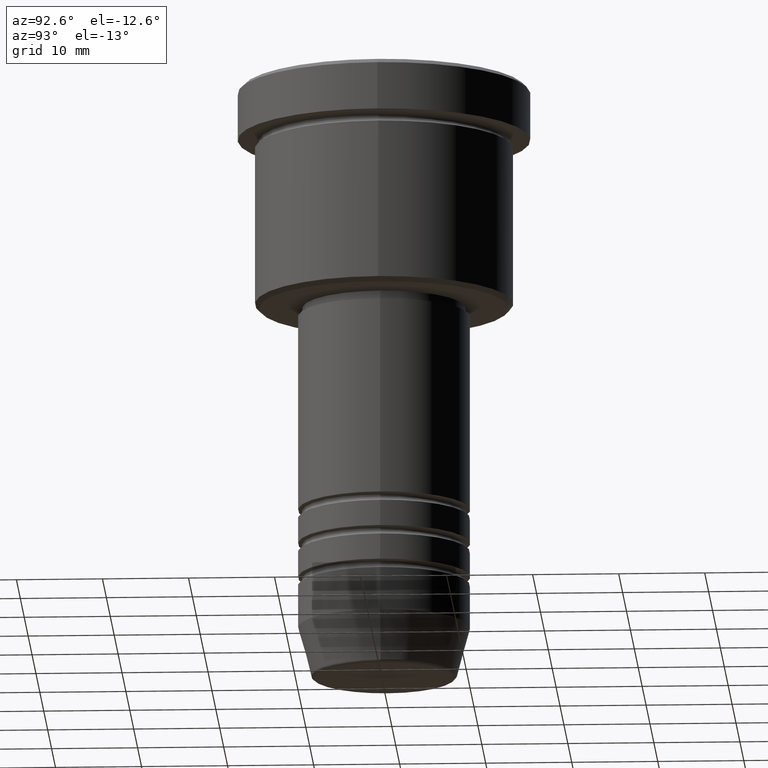
[diagram: clean part render]
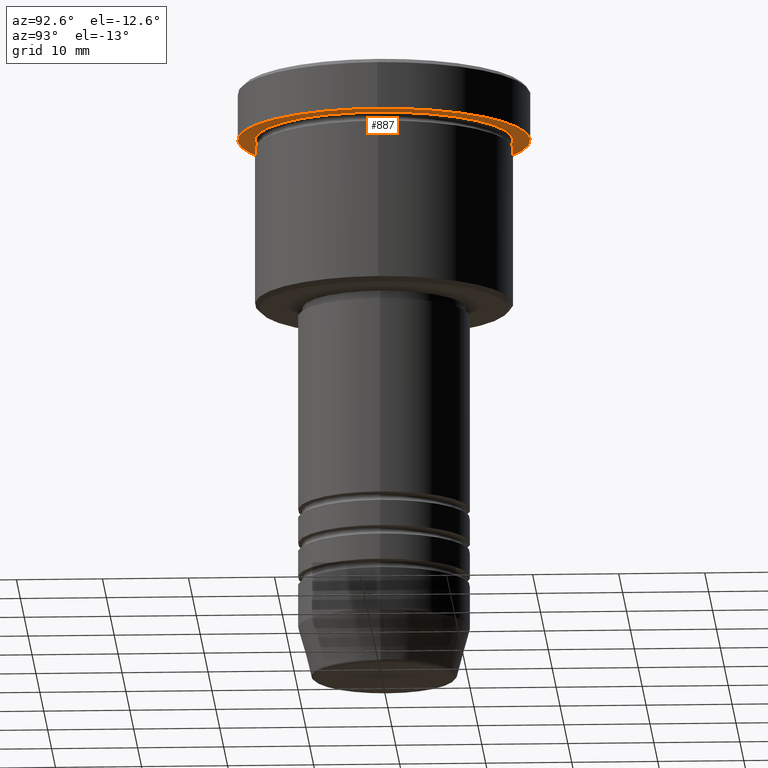
[diagram: same view with one face highlighted and labeled with its STEP entity id]
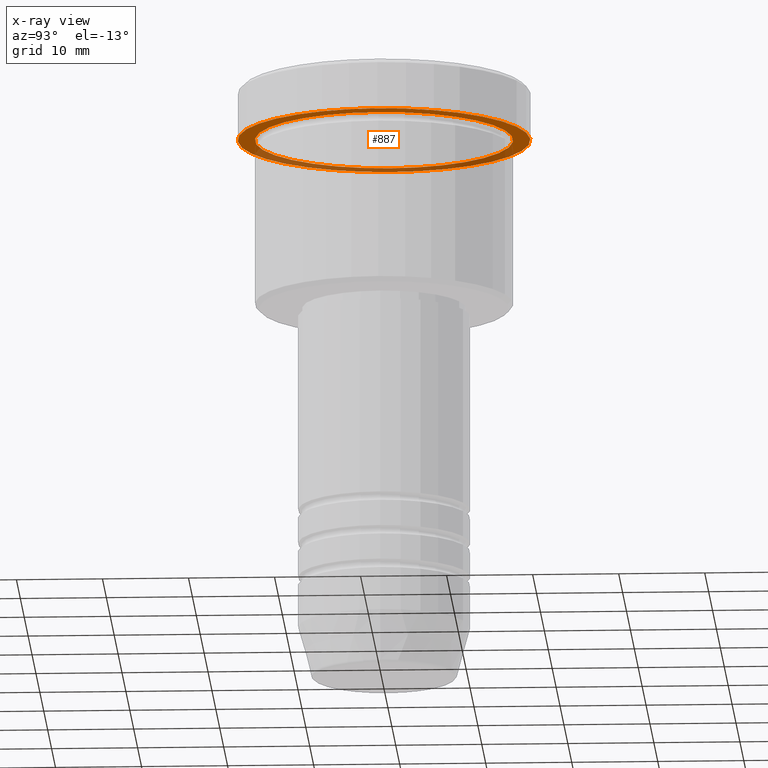
[diagram: x-ray of the same camera — body ghosted, the highlighted face saturated]
A machine part, auxiliary view. The second image highlights one B-rep face of the part: STEP entity #887.
The next image is the same camera in x-ray: the body ghosted, the highlighted face saturated — about 38% of this face is hidden behind the body in this view.
In plain terms, the highlighted planar face has unit normal (0, 0, -1).
Its self-contained STEP definition (entity closure, byte-faithful):
#60 = EDGE_CURVE ( 'NONE', #1083, #185, #685, .T. ) ;
#71 = ORIENTED_EDGE ( 'NONE', *, *, #942, .F. ) ;
#80 = FACE_BOUND ( 'NONE', #438, .T. ) ;
#137 = CARTESIAN_POINT ( 'NONE',  ( 0.000000000000000000, 0.000000000000000000, -5.999999999999994671 ) ) ;
#185 = VERTEX_POINT ( 'NONE', #195 ) ;
#195 = CARTESIAN_POINT ( 'NONE',  ( -15.00000000000000000, 0.000000000000000000, -5.999999999999994671 ) ) ;
#207 = VERTEX_POINT ( 'NONE', #1051 ) ;
#222 = AXIS2_PLACEMENT_3D ( 'NONE', #343, #1072, #598 ) ;
#230 = CARTESIAN_POINT ( 'NONE',  ( 0.000000000000000000, 0.000000000000000000, -5.999999999999994671 ) ) ;
#238 = AXIS2_PLACEMENT_3D ( 'NONE', #346, #544, #1092 ) ;
#343 = CARTESIAN_POINT ( 'NONE',  ( 0.000000000000000000, 0.000000000000000000, -5.999999999999994671 ) ) ;
#346 = CARTESIAN_POINT ( 'NONE',  ( 0.000000000000000000, 0.000000000000000000, -5.999999999999994671 ) ) ;
#360 = VERTEX_POINT ( 'NONE', #855 ) ;
#371 = DIRECTION ( 'NONE',  ( 1.000000000000000000, 0.000000000000000000, 0.000000000000000000 ) ) ;
#438 = EDGE_LOOP ( 'NONE', ( #542, #945 ) ) ;
#452 = CIRCLE ( 'NONE', #222, 15.00000000000000000 ) ;
#542 = ORIENTED_EDGE ( 'NONE', *, *, #1175, .T. ) ;
#544 = DIRECTION ( 'NONE',  ( -0.000000000000000000, -0.000000000000000000, 1.000000000000000000 ) ) ;
#598 = DIRECTION ( 'NONE',  ( -1.000000000000000000, 0.000000000000000000, 0.000000000000000000 ) ) ;
#649 = ORIENTED_EDGE ( 'NONE', *, *, #1105, .F. ) ;
#685 = CIRCLE ( 'NONE', #1071, 15.00000000000000000 ) ;
#708 = DIRECTION ( 'NONE',  ( -1.000000000000000000, 0.000000000000000000, 0.000000000000000000 ) ) ;
#717 = FACE_OUTER_BOUND ( 'NONE', #1154, .T. ) ;
#722 = DIRECTION ( 'NONE',  ( -1.000000000000000000, 0.000000000000000000, -0.000000000000000000 ) ) ;
#786 = AXIS2_PLACEMENT_3D ( 'NONE', #907, #912, #722 ) ;
#828 = CIRCLE ( 'NONE', #958, 17.00000000000000000 ) ;
#841 = CARTESIAN_POINT ( 'NONE',  ( 15.00000000000000000, 1.836970198721029589E-15, -5.999999999999994671 ) ) ;
#855 = CARTESIAN_POINT ( 'NONE',  ( -17.00000000000000000, 2.081899558550500280E-15, -5.999999999999994671 ) ) ;
#886 = DIRECTION ( 'NONE',  ( -0.000000000000000000, -0.000000000000000000, 1.000000000000000000 ) ) ;
#887 = ADVANCED_FACE ( 'NONE', ( #80, #717 ), #1084, .T. ) ;
#907 = CARTESIAN_POINT ( 'NONE',  ( 0.000000000000000000, 17.00000000000000000, -5.999999999999994671 ) ) ;
#912 = DIRECTION ( 'NONE',  ( 0.000000000000000000, 0.000000000000000000, -1.000000000000000000 ) ) ;
#921 = DIRECTION ( 'NONE',  ( -0.000000000000000000, -0.000000000000000000, 1.000000000000000000 ) ) ;
#942 = EDGE_CURVE ( 'NONE', #207, #360, #975, .T. ) ;
#945 = ORIENTED_EDGE ( 'NONE', *, *, #60, .T. ) ;
#958 = AXIS2_PLACEMENT_3D ( 'NONE', #230, #921, #371 ) ;
#975 = CIRCLE ( 'NONE', #238, 17.00000000000000000 ) ;
#1051 = CARTESIAN_POINT ( 'NONE',  ( 17.00000000000000000, 0.000000000000000000, -5.999999999999994671 ) ) ;
#1071 = AXIS2_PLACEMENT_3D ( 'NONE', #137, #886, #708 ) ;
#1072 = DIRECTION ( 'NONE',  ( -0.000000000000000000, -0.000000000000000000, 1.000000000000000000 ) ) ;
#1083 = VERTEX_POINT ( 'NONE', #841 ) ;
#1084 = PLANE ( 'NONE',  #786 ) ;
#1092 = DIRECTION ( 'NONE',  ( 1.000000000000000000, 0.000000000000000000, 0.000000000000000000 ) ) ;
#1105 = EDGE_CURVE ( 'NONE', #360, #207, #828, .T. ) ;
#1154 = EDGE_LOOP ( 'NONE', ( #71, #649 ) ) ;
#1175 = EDGE_CURVE ( 'NONE', #185, #1083, #452, .T. ) ;